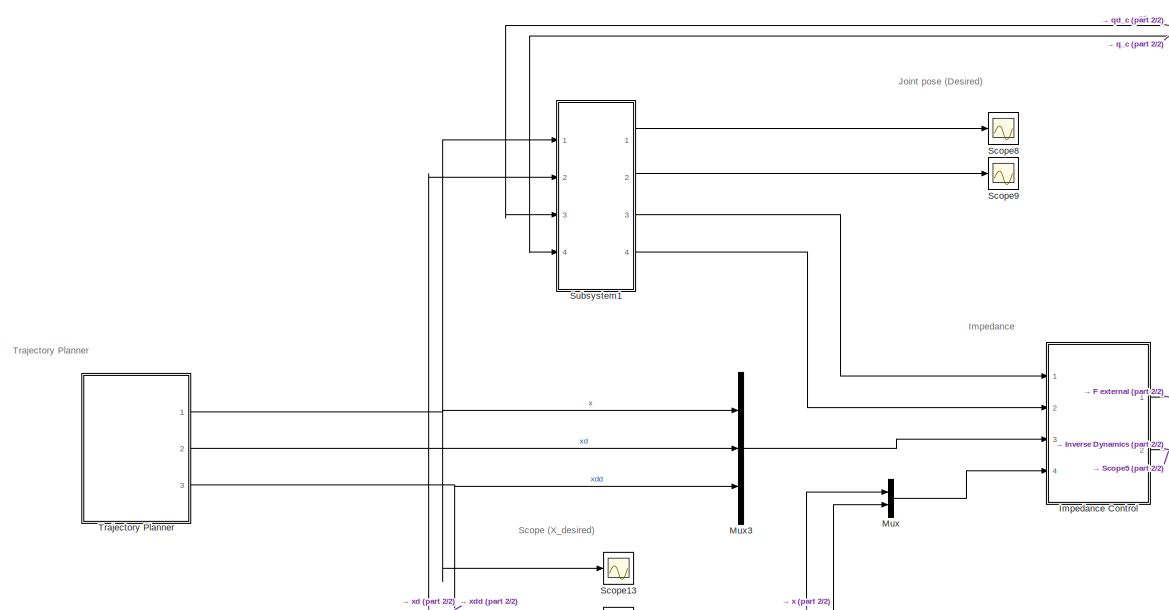
[diagram: root canvas - part 1/2, middle left region]
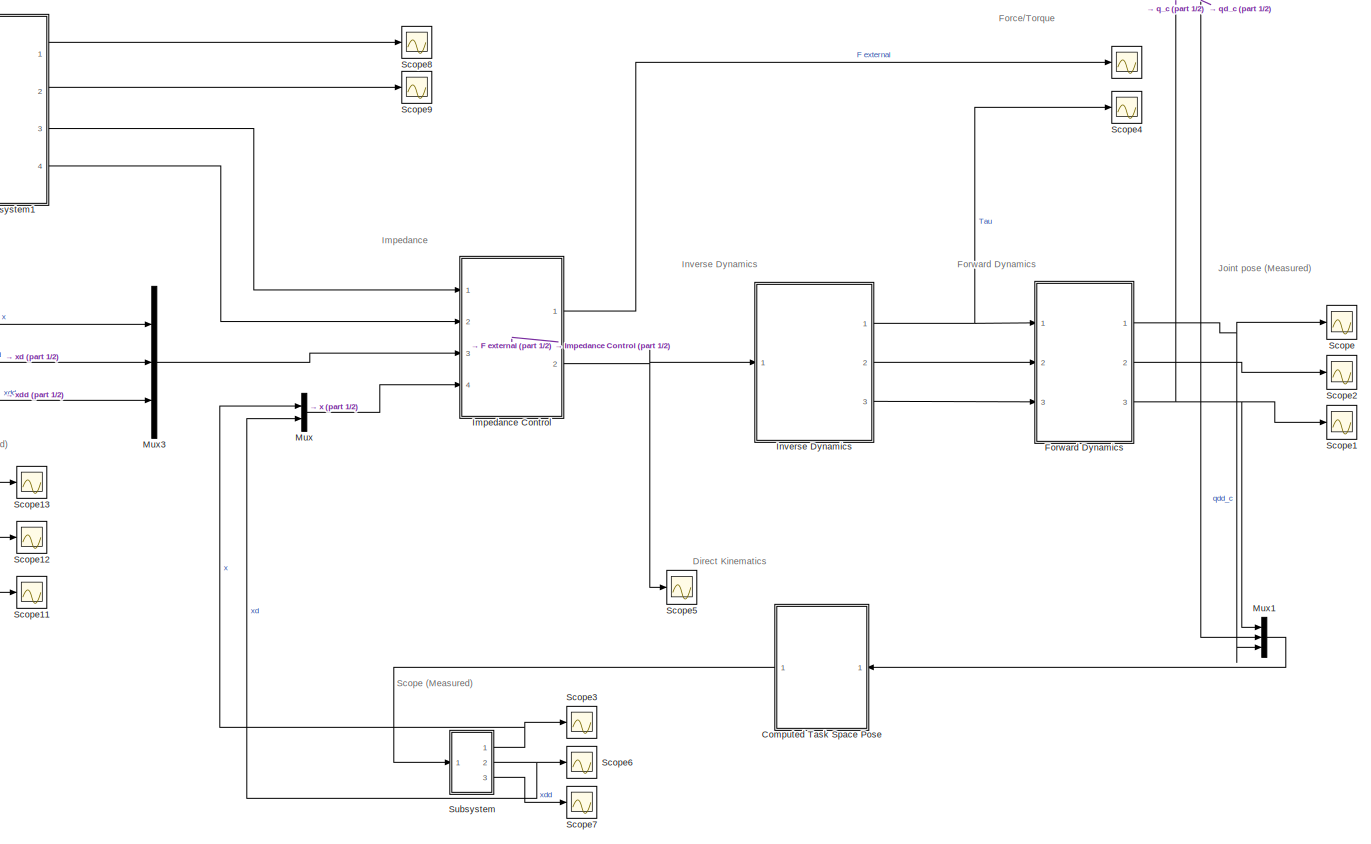
[diagram: root canvas - part 2/2, center side, full height]
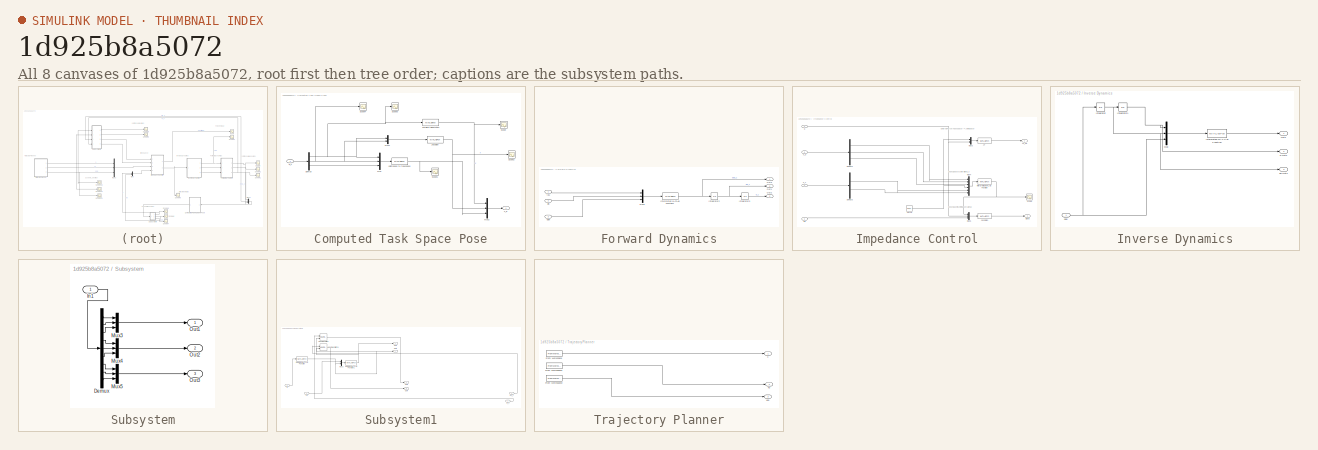
[diagram: thumbnail index - all 8 canvases of the model, root first then tree order]
MODEL slx_1d925b8a5072
KIND model
CONFIG AbsTol = auto
CONFIG EnableMultiTasking = off
CONFIG FixedStep = 0.01
CONFIG MaxStep = auto
CONFIG MinStep = auto
CONFIG RelTol = 1e-3
CONFIG SampleTimeConstraint = Unconstrained
CONFIG Solver = ode4
CONFIG SolverName = ode4
CONFIG StartTime = 0.0
CONFIG StopTime = 30
BLOCK [Scope]  
  Floating = off
  NumInputPorts = 1
  Ports = [1]
  ScopeSpecificationString = Simulink.scopes.TimeScopeBlockCfg('CurrentConfiguration', extmgr.ConfigurationSet(extmgr.Configuration('Core','General UI',true),extmgr.Configuration('Core','Source UI',true),extmgr.Configuration('Sources','WiredSimulink',true,'DataLoggingVariableName','ScopeData6'),extmgr.Configuration('Visuals','Time Domain',true,'SerializedDisplays',{struct('MinYLimReal','-1.00000','MaxYLimReal','1.00000','YLab...<+1458ch>
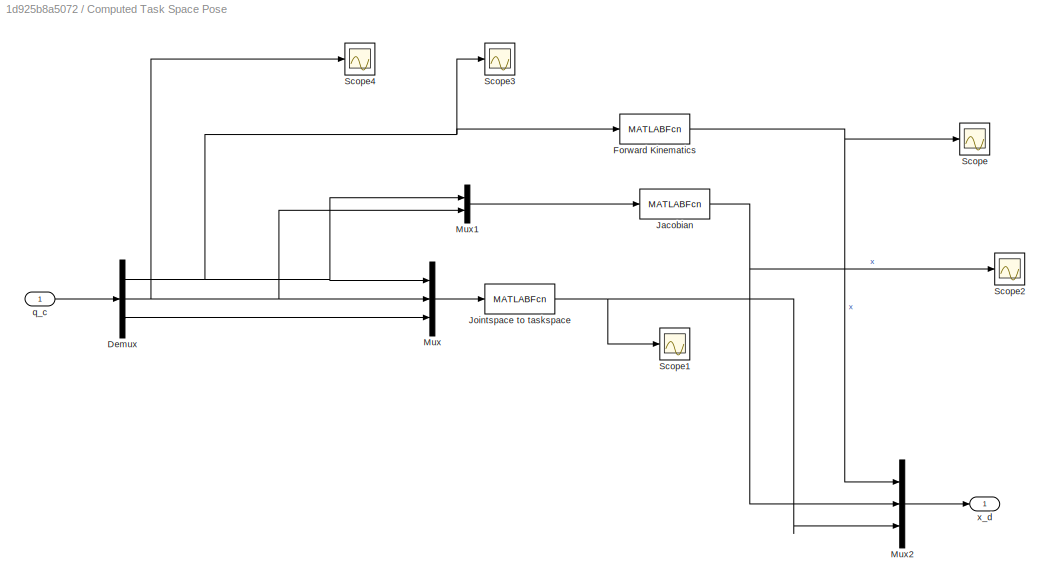
BLOCK [SubSystem] Computed Task Space Pose
  Ports = [1, 1]
  RequestExecContextInheritance = off
BLOCK [Demux] Computed Task Space Pose/Demux
  DisplayOption = bar
  Outputs = 3
  Ports = [1, 3]
BLOCK [MATLABFcn] Computed Task Space Pose/Forward Kinematics
  MATLABFcn = calcForward
  Output1D = off
  Ports = [1, 1]
BLOCK [MATLABFcn] Computed Task Space Pose/Jacobian
  MATLABFcn = calcXd
  Output1D = off
  Ports = [1, 1]
BLOCK [MATLABFcn] Computed Task Space Pose/Jointspace to taskspace
  MATLABFcn = calcXdd
  Output1D = off
  Ports = [1, 1]
BLOCK [Mux] Computed Task Space Pose/Mux
  DisplayOption = bar
  Inputs = 3
  Ports = [3, 1]
BLOCK [Mux] Computed Task Space Pose/Mux1
  DisplayOption = bar
  Inputs = 2
  Ports = [2, 1]
BLOCK [Mux] Computed Task Space Pose/Mux2
  DisplayOption = bar
  Inputs = 3
  Ports = [3, 1]
BLOCK [Scope] Computed Task Space Pose/Scope
  Floating = off
  NumInputPorts = 1
  Ports = [1]
  ScopeSpecificationString = Simulink.scopes.TimeScopeBlockCfg('CurrentConfiguration', extmgr.ConfigurationSet(extmgr.Configuration('Core','General UI',true),extmgr.Configuration('Core','Source UI',true),extmgr.Configuration('Sources','WiredSimulink',true,'DataLoggingVariableName','ScopeData7'),extmgr.Configuration('Visuals','Time Domain',true,'SerializedDisplays',{struct('MinYLimReal','-0.175','MaxYLimReal','1.575','YLabelRe...<+1362ch>
BLOCK [Scope] Computed Task Space Pose/Scope1
  Floating = off
  NumInputPorts = 1
  Ports = [1]
  ScopeSpecificationString = Simulink.scopes.TimeScopeBlockCfg('CurrentConfiguration', extmgr.ConfigurationSet(extmgr.Configuration('Core','General UI',true),extmgr.Configuration('Core','Source UI',true),extmgr.Configuration('Sources','WiredSimulink',true,'DataLoggingVariableName','ScopeData9'),extmgr.Configuration('Visuals','Time Domain',true,'SerializedDisplays',{struct('MinYLimReal','-2.40906','MaxYLimReal','1.54339','YLab...<+1538ch>
BLOCK [Scope] Computed Task Space Pose/Scope2
  Floating = off
  NumInputPorts = 1
  Ports = [1]
  ScopeSpecificationString = Simulink.scopes.TimeScopeBlockCfg('CurrentConfiguration', extmgr.ConfigurationSet(extmgr.Configuration('Core','General UI',true),extmgr.Configuration('Core','Source UI',true),extmgr.Configuration('Sources','WiredSimulink',true,'DataLoggingVariableName','ScopeData8'),extmgr.Configuration('Visuals','Time Domain',true,'SerializedDisplays',{struct('MinYLimReal','-3.19904','MaxYLimReal','1.58068','YLab...<+1374ch>
BLOCK [Scope] Computed Task Space Pose/Scope3
  Floating = off
  NumInputPorts = 1
  Ports = [1]
  ScopeSpecificationString = Simulink.scopes.TimeScopeBlockCfg('CurrentConfiguration', extmgr.ConfigurationSet(extmgr.Configuration('Core','General UI',true),extmgr.Configuration('Core','Source UI',true),extmgr.Configuration('Sources','WiredSimulink',true,'DataLoggingVariableName','ScopeData9'),extmgr.Configuration('Visuals','Time Domain',true,'SerializedDisplays',{struct('MinYLimReal','-0.61521','MaxYLimReal','1.57876','YLab...<+1455ch>
BLOCK [Scope] Computed Task Space Pose/Scope4
  Floating = off
  NumInputPorts = 1
  Ports = [1]
  ScopeSpecificationString = Simulink.scopes.TimeScopeBlockCfg('CurrentConfiguration', extmgr.ConfigurationSet(extmgr.Configuration('Core','General UI',true),extmgr.Configuration('Core','Source UI',true),extmgr.Configuration('Sources','WiredSimulink',true,'DataLoggingVariableName','ScopeData10'),extmgr.Configuration('Visuals','Time Domain',true,'SerializedDisplays',{struct('MinYLimReal','-2.87929','MaxYLimReal','2.2029','YLab...<+1379ch>
BLOCK [Inport] Computed Task Space Pose/q_c
  IconDisplay = Port number
BLOCK [Outport] Computed Task Space Pose/x_d
  IconDisplay = Port number
BLOCK [SubSystem] Forward Dynamics
  Ports = [3, 3]
  RequestExecContextInheritance = off
  ShowPortLabels = SignalName
BLOCK [Integrator] Forward Dynamics/Integrator2
  Ports = [1, 1]
BLOCK [Integrator] Forward Dynamics/Integrator3
  Ports = [1, 1]
BLOCK [MATLABFcn] Forward Dynamics/Interpreted MATLAB Function1
  MATLABFcn = forwardDyn
  Output1D = off
  Ports = [1, 1]
BLOCK [Mux] Forward Dynamics/Mux5
  DisplayOption = bar
  Inputs = 3
  Ports = [3, 1]
BLOCK [Outport] Forward Dynamics/Out1
  IconDisplay = Port number
  Port = 2
BLOCK [Outport] Forward Dynamics/Out2
  IconDisplay = Port number
  Port = 3
BLOCK [Outport] Forward Dynamics/Out3
  IconDisplay = Port number
BLOCK [Inport] Forward Dynamics/qdin
  IconDisplay = Port number
  Port = 3
BLOCK [Inport] Forward Dynamics/qin
  IconDisplay = Port number
  Port = 2
BLOCK [Inport] Forward Dynamics/tau
  IconDisplay = Port number
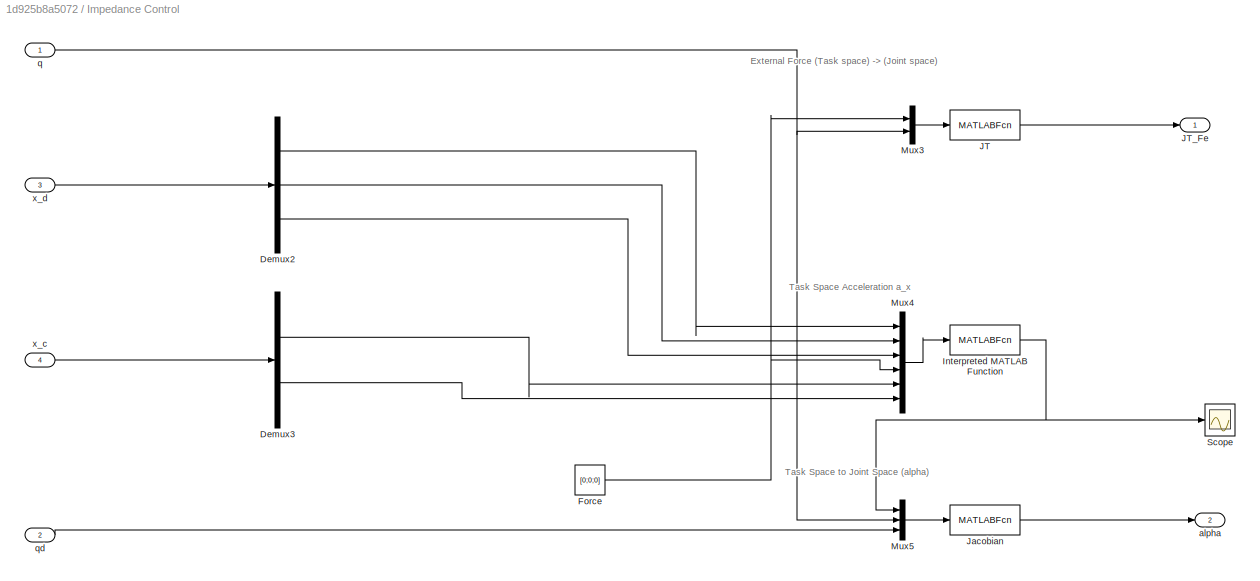
BLOCK [SubSystem] Impedance Control
  Ports = [4, 2]
  RequestExecContextInheritance = off
BLOCK [Demux] Impedance Control/Demux2
  DisplayOption = bar
  Outputs = 3
  Ports = [1, 3]
BLOCK [Demux] Impedance Control/Demux3
  DisplayOption = bar
  Outputs = 2
  Ports = [1, 2]
BLOCK [Constant] Impedance Control/Force
  Value = [0;0;0]
BLOCK [MATLABFcn] Impedance Control/Interpreted MATLAB Function
  MATLABFcn = impedanceAccelControl
  Output1D = off
  Ports = [1, 1]
BLOCK [MATLABFcn] Impedance Control/JT
  MATLABFcn = calcforceTorque
  Output1D = off
  Ports = [1, 1]
BLOCK [Outport] Impedance Control/JT_Fe
  IconDisplay = Port number
BLOCK [MATLABFcn] Impedance Control/Jacobian
  MATLABFcn = calcQdd
  Output1D = off
  Ports = [1, 1]
BLOCK [Mux] Impedance Control/Mux3
  DisplayOption = bar
  Inputs = 2
  Ports = [2, 1]
BLOCK [Mux] Impedance Control/Mux4
  DisplayOption = bar
  Inputs = 6
  Ports = [6, 1]
BLOCK [Mux] Impedance Control/Mux5
  DisplayOption = bar
  Inputs = 3
  Ports = [3, 1]
BLOCK [Scope] Impedance Control/Scope
  Floating = off
  NumInputPorts = 1
  Ports = [1]
  ScopeSpecificationString = Simulink.scopes.TimeScopeBlockCfg('CurrentConfiguration', extmgr.ConfigurationSet(extmgr.Configuration('Core','General UI',true),extmgr.Configuration('Core','Source UI',true),extmgr.Configuration('Sources','WiredSimulink',true,'DataLoggingVariableName','ScopeData4'),extmgr.Configuration('Visuals','Time Domain',true,'SerializedDisplays',{struct('MinYLimReal','-14.7539','MaxYLimReal','14.59377','YLa...<+1530ch>
BLOCK [Outport] Impedance Control/alpha
  IconDisplay = Port number
  Port = 2
BLOCK [Inport] Impedance Control/q
  IconDisplay = Port number
BLOCK [Inport] Impedance Control/qd
  IconDisplay = Port number
  Port = 2
BLOCK [Inport] Impedance Control/x_c
  IconDisplay = Port number
  Port = 4
BLOCK [Inport] Impedance Control/x_d
  IconDisplay = Port number
  Port = 3
BLOCK [SubSystem] Inverse Dynamics
  Ports = [1, 3]
  RequestExecContextInheritance = off
BLOCK [Integrator] Inverse Dynamics/Integrator
  Ports = [1, 1]
BLOCK [Integrator] Inverse Dynamics/Integrator1
  Ports = [1, 1]
BLOCK [MATLABFcn] Inverse Dynamics/Interpreted MATLAB Function
  MATLABFcn = RNE_sim2
  Output1D = off
  Ports = [1, 1]
BLOCK [Mux] Inverse Dynamics/Mux
  DisplayOption = bar
  Inputs = 3
  Ports = [3, 1]
BLOCK [Outport] Inverse Dynamics/Out1
  IconDisplay = Port number
BLOCK [Outport] Inverse Dynamics/q Out2
  IconDisplay = Port number
  Port = 2
BLOCK [Outport] Inverse Dynamics/qd Out3
  IconDisplay = Port number
  Port = 3
BLOCK [Inport] Inverse Dynamics/qdd
  IconDisplay = Port number
BLOCK [Mux] Mux
  DisplayOption = bar
  Inputs = 2
  Ports = [2, 1]
BLOCK [Mux] Mux1
  DisplayOption = bar
  Inputs = 3
  Ports = [3, 1]
BLOCK [Mux] Mux3
  DisplayOption = bar
  Inputs = 3
  Ports = [3, 1]
BLOCK [Scope] Scope
  Floating = off
  NumInputPorts = 1
  Ports = [1]
  ScopeSpecificationString = Simulink.scopes.TimeScopeBlockCfg('CurrentConfiguration', extmgr.ConfigurationSet(extmgr.Configuration('Core','General UI',true),extmgr.Configuration('Core','Source UI',true),extmgr.Configuration('Sources','WiredSimulink',true,'DataLoggingVariableName','ScopeData1'),extmgr.Configuration('Visuals','Time Domain',true,'SerializedDisplays',{struct('MinYLimReal','-38.02713','MaxYLimReal','22.02059','YL...<+1549ch>
BLOCK [Scope] Scope1
  Floating = off
  NumInputPorts = 1
  Ports = [1]
  ScopeSpecificationString = Simulink.scopes.TimeScopeBlockCfg('CurrentConfiguration', extmgr.ConfigurationSet(extmgr.Configuration('Core','General UI',true),extmgr.Configuration('Core','Source UI',true),extmgr.Configuration('Sources','WiredSimulink',true,'DataLoggingVariableName','ScopeData2'),extmgr.Configuration('Visuals','Time Domain',true,'SerializedDisplays',{struct('MinYLimReal','-7.64284','MaxYLimReal','2.5688','YLabe...<+1414ch>
BLOCK [Scope] Scope11
  Floating = off
  NumInputPorts = 1
  Ports = [1]
  ScopeSpecificationString = Simulink.scopes.TimeScopeBlockCfg('CurrentConfiguration', extmgr.ConfigurationSet(extmgr.Configuration('Core','General UI',true),extmgr.Configuration('Core','Source UI',true),extmgr.Configuration('Sources','WiredSimulink',true,'DataLoggingVariableName','ScopeData8'),extmgr.Configuration('Visuals','Time Domain',true,'SerializedDisplays',{struct('MinYLimReal','-0.00481','MaxYLimReal','0.00481','YLab...<+1408ch>
BLOCK [Scope] Scope12
  Floating = off
  NumInputPorts = 1
  Ports = [1]
  ScopeSpecificationString = Simulink.scopes.TimeScopeBlockCfg('CurrentConfiguration', extmgr.ConfigurationSet(extmgr.Configuration('Core','General UI',true),extmgr.Configuration('Core','Source UI',true),extmgr.Configuration('Sources','WiredSimulink',true,'DataLoggingVariableName','ScopeData6'),extmgr.Configuration('Visuals','Time Domain',true,'SerializedDisplays',{struct('MinYLimReal','-0.00469','MaxYLimReal','0.04219','YLab...<+1405ch>
BLOCK [Scope] Scope13
  Floating = off
  NumInputPorts = 1
  Ports = [1]
  ScopeSpecificationString = Simulink.scopes.TimeScopeBlockCfg('CurrentConfiguration', extmgr.ConfigurationSet(extmgr.Configuration('Core','General UI',true),extmgr.Configuration('Core','Source UI',true),extmgr.Configuration('Sources','WiredSimulink',true,'DataLoggingVariableName','ScopeData11'),extmgr.Configuration('Visuals','Time Domain',true,'SerializedDisplays',{struct('MinYLimReal','-0.125','MaxYLimReal','1.125','YLabelR...<+1391ch>
BLOCK [Scope] Scope2
  Floating = off
  NumInputPorts = 1
  Ports = [1]
  ScopeSpecificationString = Simulink.scopes.TimeScopeBlockCfg('CurrentConfiguration', extmgr.ConfigurationSet(extmgr.Configuration('Core','General UI',true),extmgr.Configuration('Core','Source UI',true),extmgr.Configuration('Sources','WiredSimulink',true,'DataLoggingVariableName','ScopeData3'),extmgr.Configuration('Visuals','Time Domain',true,'SerializedDisplays',{struct('MinYLimReal','-0.85323','MaxYLimReal','0.50817','YLab...<+1539ch>
BLOCK [Scope] Scope3
  Floating = off
  NumInputPorts = 1
  Ports = [1]
  ScopeSpecificationString = Simulink.scopes.TimeScopeBlockCfg('CurrentConfiguration', extmgr.ConfigurationSet(extmgr.Configuration('Core','General UI',true),extmgr.Configuration('Core','Source UI',true),extmgr.Configuration('Sources','WiredSimulink',true,'DataLoggingVariableName','ScopeData1'),extmgr.Configuration('Visuals','Time Domain',true,'SerializedDisplays',{struct('MinYLimReal','-0.175','MaxYLimReal','1.575','YLabelRe...<+1458ch>
BLOCK [Scope] Scope4
  Floating = off
  NumInputPorts = 1
  Ports = [1]
  ScopeSpecificationString = Simulink.scopes.TimeScopeBlockCfg('CurrentConfiguration', extmgr.ConfigurationSet(extmgr.Configuration('Core','General UI',true),extmgr.Configuration('Core','Source UI',true),extmgr.Configuration('Sources','WiredSimulink',true,'DataLoggingVariableName','ScopeData5'),extmgr.Configuration('Visuals','Time Domain',true,'SerializedDisplays',{struct('MinYLimReal','-13.39748','MaxYLimReal','39.82573','YL...<+1408ch>
BLOCK [Scope] Scope5
  Floating = off
  NumInputPorts = 1
  Ports = [1]
  ScopeSpecificationString = Simulink.scopes.TimeScopeBlockCfg('CurrentConfiguration', extmgr.ConfigurationSet(extmgr.Configuration('Core','General UI',true),extmgr.Configuration('Core','Source UI',true),extmgr.Configuration('Sources','WiredSimulink',true,'DataLoggingVariableName','ScopeData6'),extmgr.Configuration('Visuals','Time Domain',true,'SerializedDisplays',{struct('MinYLimReal','-0.000000000000045','MaxYLimReal','0.00...<+1531ch>
BLOCK [Scope] Scope6
  Floating = off
  NumInputPorts = 1
  Ports = [1]
  ScopeSpecificationString = Simulink.scopes.TimeScopeBlockCfg('CurrentConfiguration', extmgr.ConfigurationSet(extmgr.Configuration('Core','General UI',true),extmgr.Configuration('Core','Source UI',true),extmgr.Configuration('Sources','WiredSimulink',true,'DataLoggingVariableName','ScopeData2'),extmgr.Configuration('Visuals','Time Domain',true,'SerializedDisplays',{struct('MinYLimReal','-1.14205','MaxYLimReal','1.66196','YLab...<+1407ch>
BLOCK [Scope] Scope7
  Floating = off
  NumInputPorts = 1
  Ports = [1]
  ScopeSpecificationString = Simulink.scopes.TimeScopeBlockCfg('CurrentConfiguration', extmgr.ConfigurationSet(extmgr.Configuration('Core','General UI',true),extmgr.Configuration('Core','Source UI',true),extmgr.Configuration('Sources','WiredSimulink',true,'DataLoggingVariableName','ScopeData3'),extmgr.Configuration('Visuals','Time Domain',true,'SerializedDisplays',{struct('MinYLimReal','-5.86043','MaxYLimReal','10.78915','YLa...<+1412ch>
BLOCK [Scope] Scope8
  Floating = off
  NumInputPorts = 1
  Ports = [1]
  ScopeSpecificationString = Simulink.scopes.TimeScopeBlockCfg('CurrentConfiguration', extmgr.ConfigurationSet(extmgr.Configuration('Core','General UI',true),extmgr.Configuration('Core','Source UI',true),extmgr.Configuration('Sources','WiredSimulink',true,'DataLoggingVariableName','ScopeData5'),extmgr.Configuration('Visuals','Time Domain',true,'SerializedDisplays',{struct('MinYLimReal','-0.03971','MaxYLimReal','0.00441','YLab...<+1418ch>
BLOCK [Scope] Scope9
  Floating = off
  NumInputPorts = 1
  Ports = [1]
  ScopeSpecificationString = Simulink.scopes.TimeScopeBlockCfg('CurrentConfiguration', extmgr.ConfigurationSet(extmgr.Configuration('Core','General UI',true),extmgr.Configuration('Core','Source UI',true),extmgr.Configuration('Sources','WiredSimulink',true,'DataLoggingVariableName','ScopeData7'),extmgr.Configuration('Visuals','Time Domain',true,'SerializedDisplays',{struct('MinYLimReal','-3.16787','MaxYLimReal','-1.08321','YLa...<+1420ch>
BLOCK [SubSystem] Subsystem
  Ports = [1, 3]
  RequestExecContextInheritance = off
BLOCK [Demux] Subsystem/Demux
  DisplayOption = bar
  Outputs = 9
  Ports = [1, 9]
BLOCK [Inport] Subsystem/In1
  IconDisplay = Port number
BLOCK [Mux] Subsystem/Mux3
  DisplayOption = bar
  Inputs = 3
  Ports = [3, 1]
BLOCK [Mux] Subsystem/Mux4
  DisplayOption = bar
  Inputs = 3
  Ports = [3, 1]
BLOCK [Mux] Subsystem/Mux5
  DisplayOption = bar
  Inputs = 3
  Ports = [3, 1]
BLOCK [Outport] Subsystem/Out1
  IconDisplay = Port number
BLOCK [Outport] Subsystem/Out2
  IconDisplay = Port number
  Port = 2
BLOCK [Outport] Subsystem/Out3
  IconDisplay = Port number
  Port = 3
BLOCK [SubSystem] Subsystem1
  Ports = [4, 4]
  RequestExecContextInheritance = off
BLOCK [MATLABFcn] Subsystem1/Interpreted MATLAB Function
  MATLABFcn = calcInverseKin
  Output1D = off
  Ports = [1, 1]
BLOCK [MATLABFcn] Subsystem1/Interpreted MATLAB Function1
  MATLABFcn = calcQd
  Output1D = off
  Ports = [1, 1]
BLOCK [Mux] Subsystem1/Mux2
  DisplayOption = bar
  Inputs = 2
  Ports = [2, 1]
BLOCK [Reference] Subsystem1/N-Sample Switch  REF=dspswit3/N-Sample
Switch
  Ports = [2, 1]
  SourceBlock = dspswit3/N-Sample\nSwitch
  SourceProductBaseCode = DS
  SourceProductName = DSP System Toolbox
  SourceType = N-Sample Switch
BLOCK [Reference] Subsystem1/N-Sample Switch1  REF=dspswit3/N-Sample
Switch
  Ports = [2, 1]
  SourceBlock = dspswit3/N-Sample\nSwitch
  SourceProductBaseCode = DS
  SourceProductName = DSP System Toolbox
  SourceType = N-Sample Switch
BLOCK [Outport] Subsystem1/Out1
  IconDisplay = Port number
BLOCK [Outport] Subsystem1/Out2
  IconDisplay = Port number
  Port = 2
BLOCK [Outport] Subsystem1/Out3
  IconDisplay = Port number
  Port = 3
BLOCK [Outport] Subsystem1/Out4
  IconDisplay = Port number
  Port = 4
BLOCK [Inport] Subsystem1/q_c
  IconDisplay = Port number
  Port = 4
BLOCK [Inport] Subsystem1/qd_c
  IconDisplay = Port number
  Port = 3
BLOCK [Inport] Subsystem1/x
  IconDisplay = Port number
BLOCK [Inport] Subsystem1/xd
  IconDisplay = Port number
  Port = 2
BLOCK [SubSystem] Trajectory Planner
  Ports = [0, 3]
  RequestExecContextInheritance = off
BLOCK [FromWorkspace] Trajectory Planner/From Workspace
  SampleTime = 0
  VariableName = X1
  ZeroCross = on
BLOCK [FromWorkspace] Trajectory Planner/From Workspace1
  SampleTime = 0
  VariableName = X1dot
  ZeroCross = on
BLOCK [FromWorkspace] Trajectory Planner/From Workspace2
  SampleTime = 0
  VariableName = X1ddot
  ZeroCross = on
BLOCK [Outport] Trajectory Planner/X
  IconDisplay = Port number
BLOCK [Outport] Trajectory Planner/Xd
  IconDisplay = Port number
  Port = 2
BLOCK [Outport] Trajectory Planner/Xdd
  IconDisplay = Port number
  Port = 3
ANNOTATION (root): Direct Kinematics
ANNOTATION (root): Force/Torque
ANNOTATION (root): Forward Dynamics
ANNOTATION (root): Impedance
ANNOTATION (root): Inverse Dynamics
ANNOTATION (root): Joint pose (Desired)
ANNOTATION (root): Joint pose (Measured)
ANNOTATION (root): Scope (Measured)
ANNOTATION (root): Scope (X_desired)
ANNOTATION (root): Trajectory Planner
ANNOTATION Impedance Control: External Force (Task space) -> (Joint space)
ANNOTATION Impedance Control: Task Space Acceleration a_x
ANNOTATION Impedance Control: Task Space to Joint Space (alpha)
NET Computed Task Space Pose/Demux:1 -> Computed Task Space Pose/Forward Kinematics:1, Computed Task Space Pose/Mux1:1, Computed Task Space Pose/Mux:1, Computed Task Space Pose/Scope3:1
NET Computed Task Space Pose/Demux:2 -> Computed Task Space Pose/Mux1:2, Computed Task Space Pose/Mux:2, Computed Task Space Pose/Scope4:1
LINE Computed Task Space Pose/Demux:3 -> Computed Task Space Pose/Mux:3
NET Computed Task Space Pose/Forward Kinematics:1 -> Computed Task Space Pose/Mux2:1, Computed Task Space Pose/Scope:1
NET Computed Task Space Pose/Jacobian:1 -> Computed Task Space Pose/Mux2:2, Computed Task Space Pose/Scope2:1
NET Computed Task Space Pose/Jointspace to taskspace:1 -> Computed Task Space Pose/Mux2:3, Computed Task Space Pose/Scope1:1
LINE Computed Task Space Pose/Mux1:1 -> Computed Task Space Pose/Jacobian:1
LINE Computed Task Space Pose/Mux2:1 -> Computed Task Space Pose/x_d:1
LINE Computed Task Space Pose/Mux:1 -> Computed Task Space Pose/Jointspace to taskspace:1
LINE Computed Task Space Pose/q_c:1 -> Computed Task Space Pose/Demux:1
LINE Computed Task Space Pose:1 -> Subsystem:1
NET Forward Dynamics/Integrator2:1 -> Forward Dynamics/Integrator3:1, Forward Dynamics/Out1:1
LINE Forward Dynamics/Integrator3:1 -> Forward Dynamics/Out2:1
NET Forward Dynamics/Interpreted MATLAB Function1:1 -> Forward Dynamics/Integrator2:1, Forward Dynamics/Out3:1
LINE Forward Dynamics/Mux5:1 -> Forward Dynamics/Interpreted MATLAB Function1:1
LINE Forward Dynamics/qdin:1 -> Forward Dynamics/Mux5:3
LINE Forward Dynamics/qin:1 -> Forward Dynamics/Mux5:2
LINE Forward Dynamics/tau:1 -> Forward Dynamics/Mux5:1
NET Forward Dynamics:1 -> Mux1:3, Scope:1
NET Forward Dynamics:2 -> Mux1:2, Scope2:1, Subsystem1:3
NET Forward Dynamics:3 -> Mux1:1, Scope1:1, Subsystem1:4
LINE Impedance Control/Demux2:1 -> Impedance Control/Mux4:1
LINE Impedance Control/Demux2:2 -> Impedance Control/Mux4:2
LINE Impedance Control/Demux2:3 -> Impedance Control/Mux4:3
LINE Impedance Control/Demux3:1 -> Impedance Control/Mux4:5
LINE Impedance Control/Demux3:2 -> Impedance Control/Mux4:6
NET Impedance Control/Force:1 -> Impedance Control/Mux3:1, Impedance Control/Mux4:4
NET Impedance Control/Interpreted MATLAB Function:1 -> Impedance Control/Mux5:1, Impedance Control/Scope:1
LINE Impedance Control/JT:1 -> Impedance Control/JT_Fe:1
LINE Impedance Control/Jacobian:1 -> Impedance Control/alpha:1
LINE Impedance Control/Mux3:1 -> Impedance Control/JT:1
LINE Impedance Control/Mux4:1 -> Impedance Control/Interpreted MATLAB Function:1
LINE Impedance Control/Mux5:1 -> Impedance Control/Jacobian:1
NET Impedance Control/q:1 -> Impedance Control/Mux3:2, Impedance Control/Mux5:2
LINE Impedance Control/qd:1 -> Impedance Control/Mux5:3
LINE Impedance Control/x_c:1 -> Impedance Control/Demux3:1
LINE Impedance Control/x_d:1 -> Impedance Control/Demux2:1
LINE Impedance Control:1 ->  :1
NET Impedance Control:2 -> Inverse Dynamics:1, Scope5:1
NET Inverse Dynamics/Integrator1:1 -> Inverse Dynamics/Mux:1, Inverse Dynamics/q Out2:1
NET Inverse Dynamics/Integrator:1 -> Inverse Dynamics/Integrator1:1, Inverse Dynamics/Mux:2, Inverse Dynamics/qd Out3:1
LINE Inverse Dynamics/Interpreted MATLAB Function:1 -> Inverse Dynamics/Out1:1
LINE Inverse Dynamics/Mux:1 -> Inverse Dynamics/Interpreted MATLAB Function:1
NET Inverse Dynamics/qdd:1 -> Inverse Dynamics/Integrator:1, Inverse Dynamics/Mux:3
NET Inverse Dynamics:1 -> Forward Dynamics:1, Scope4:1
LINE Inverse Dynamics:2 -> Forward Dynamics:2
LINE Inverse Dynamics:3 -> Forward Dynamics:3
LINE Mux1:1 -> Computed Task Space Pose:1
LINE Mux3:1 -> Impedance Control:3
LINE Mux:1 -> Impedance Control:4
LINE Subsystem/Demux:1 -> Subsystem/Mux3:1
LINE Subsystem/Demux:2 -> Subsystem/Mux3:2
LINE Subsystem/Demux:3 -> Subsystem/Mux3:3
LINE Subsystem/Demux:4 -> Subsystem/Mux4:1
LINE Subsystem/Demux:5 -> Subsystem/Mux4:2
LINE Subsystem/Demux:6 -> Subsystem/Mux4:3
LINE Subsystem/Demux:7 -> Subsystem/Mux5:1
LINE Subsystem/Demux:8 -> Subsystem/Mux5:2
LINE Subsystem/Demux:9 -> Subsystem/Mux5:3
LINE Subsystem/In1:1 -> Subsystem/Demux:1
LINE Subsystem/Mux3:1 -> Subsystem/Out1:1
LINE Subsystem/Mux4:1 -> Subsystem/Out2:1
LINE Subsystem/Mux5:1 -> Subsystem/Out3:1
NET Subsystem1/Interpreted MATLAB Function1:1 -> Subsystem1/N-Sample Switch1:2, Subsystem1/Out1:1
NET Subsystem1/Interpreted MATLAB Function:1 -> Subsystem1/Mux2:2, Subsystem1/N-Sample Switch:2, Subsystem1/Out2:1
LINE Subsystem1/Mux2:1 -> Subsystem1/Interpreted MATLAB Function1:1
LINE Subsystem1/N-Sample Switch1:1 -> Subsystem1/Out4:1
LINE Subsystem1/N-Sample Switch:1 -> Subsystem1/Out3:1
LINE Subsystem1/q_c:1 -> Subsystem1/N-Sample Switch:1
LINE Subsystem1/qd_c:1 -> Subsystem1/N-Sample Switch1:1
LINE Subsystem1/x:1 -> Subsystem1/Interpreted MATLAB Function:1
LINE Subsystem1/xd:1 -> Subsystem1/Mux2:1
LINE Subsystem1:1 -> Scope8:1
LINE Subsystem1:2 -> Scope9:1
LINE Subsystem1:3 -> Impedance Control:1
LINE Subsystem1:4 -> Impedance Control:2
NET Subsystem:1 -> Mux:1, Scope3:1
NET Subsystem:2 -> Mux:2, Scope6:1
LINE Subsystem:3 -> Scope7:1
LINE Trajectory Planner/From Workspace1:1 -> Trajectory Planner/Xd:1
LINE Trajectory Planner/From Workspace2:1 -> Trajectory Planner/Xdd:1
LINE Trajectory Planner/From Workspace:1 -> Trajectory Planner/X:1
NET Trajectory Planner:1 -> Mux3:1, Scope13:1, Subsystem1:1
NET Trajectory Planner:2 -> Mux3:2, Scope12:1, Subsystem1:2
NET Trajectory Planner:3 -> Mux3:3, Scope11:1
note: NET lines group one-source signal fan-out (src -> all destinations, sorted); 1:1 wires keep LINE
